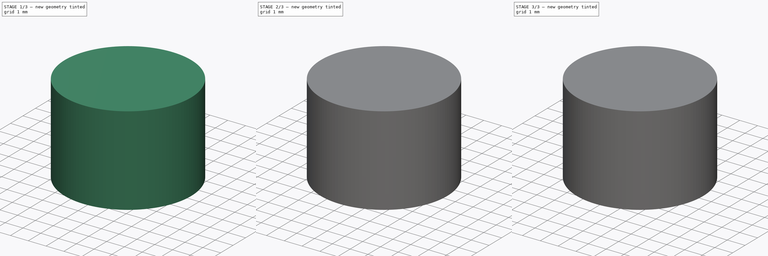
[diagram: build sequence overview — one tinted view per stage of 3, left to right]
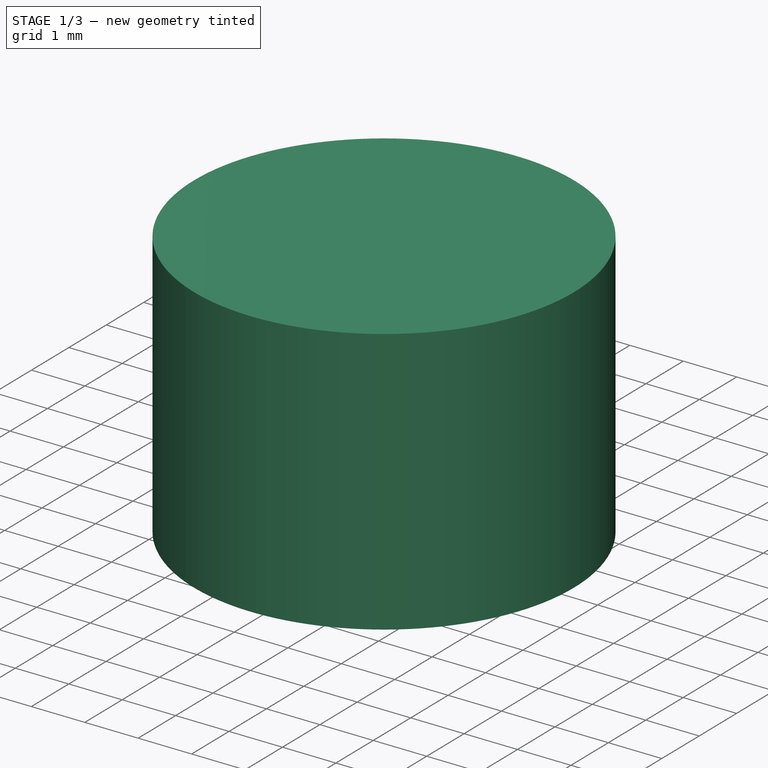
[diagram: stage 1 of 3 — iso view after this stage's code; geometry added in this stage tinted green]
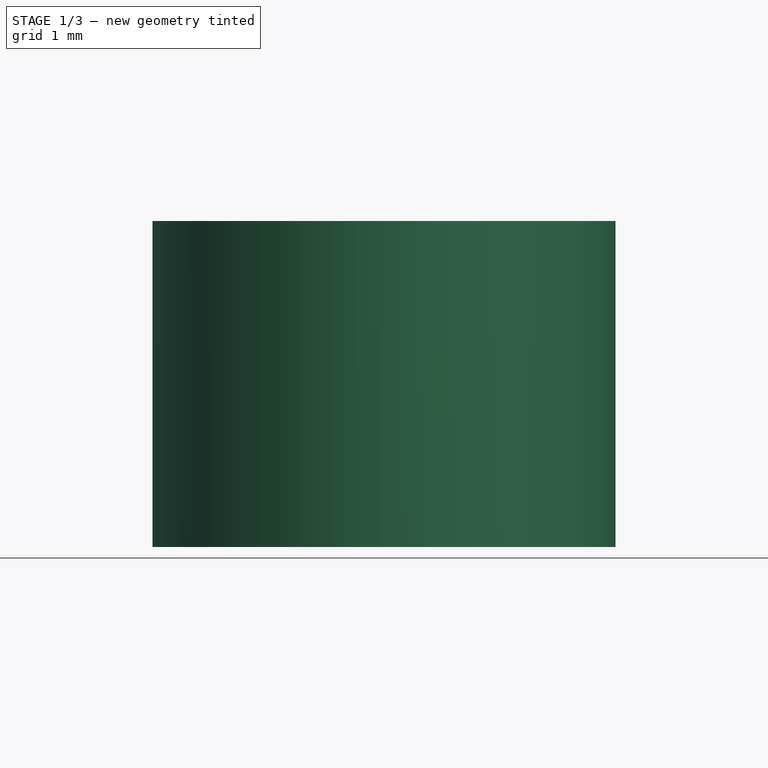
[diagram: stage 1 of 3 — front view after this stage's code; geometry added in this stage tinted green]
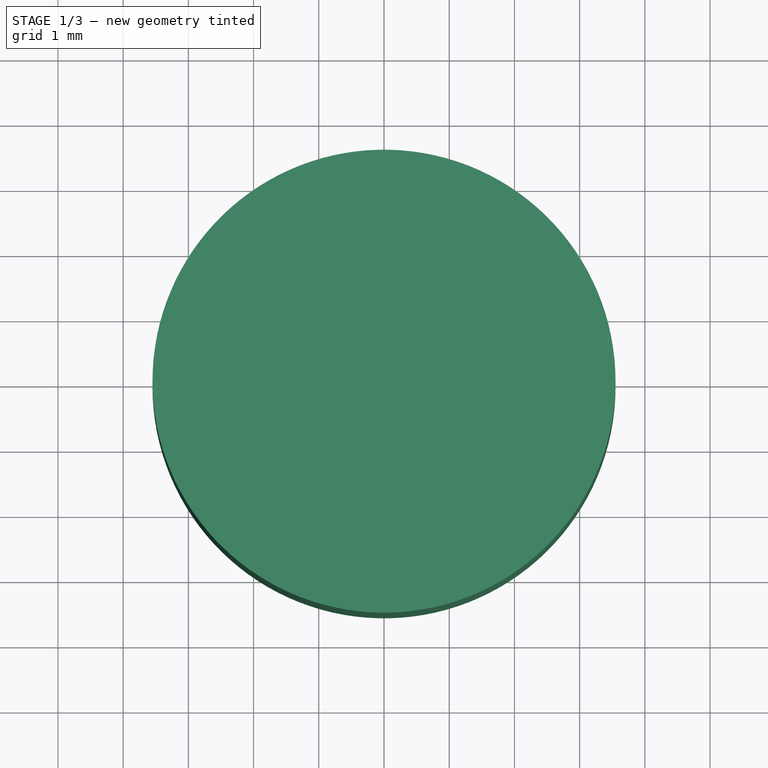
[diagram: stage 1 of 3 — top view after this stage's code; geometry added in this stage tinted green]
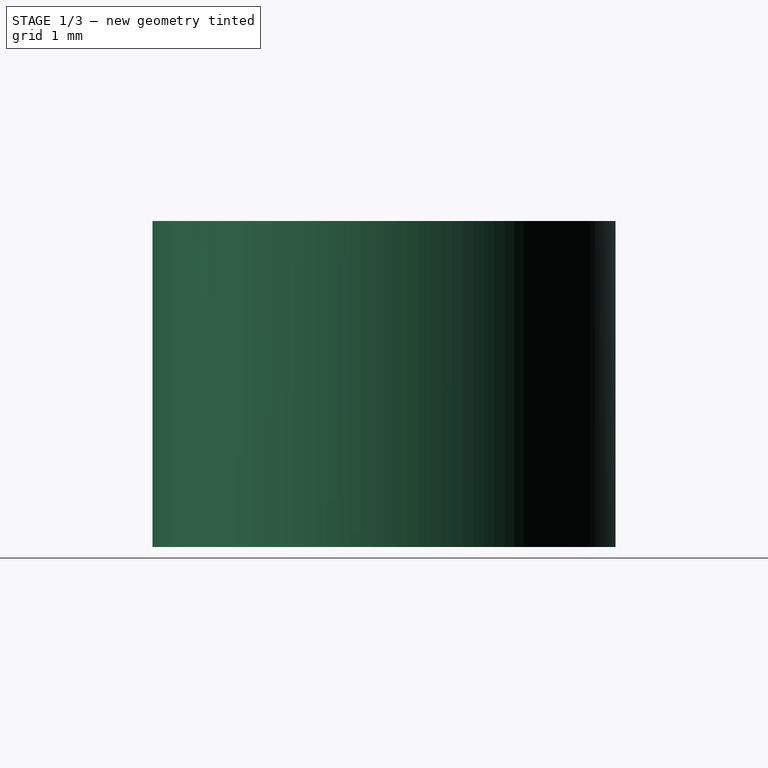
[diagram: stage 1 of 3 — right view after this stage's code; geometry added in this stage tinted green]
FCSTD DOCUMENT  (FreeCAD 0.16R6700 (Git))
Label: BedLevelerBoltHook
License: CreativeCommons Attribution-ShareAlike
LicenseURL: http://creativecommons.org/licenses/by-sa/4.0/
objects: Part::Cylinder×2, Sketcher::SketchObject×1, PartDesign::Pocket×1, PartDesign::Fillet×1, Part::Cut×1
note: 7 computed .brp shape members not serialized (recipe doc carries the construction recipe); baked Part::Feature solids carry a one-line shape summary decoded from their .brp

FEATURE [Part::Cylinder] Cylinder  label="Bolt Base"
  Angle = 360
  Height = 2.54
  Radius = 2.8
FEATURE [Part::Cylinder] Cylinder001  label="BoltHook Base"
  Angle = 360
  Height = 5
  Radius = 3.55
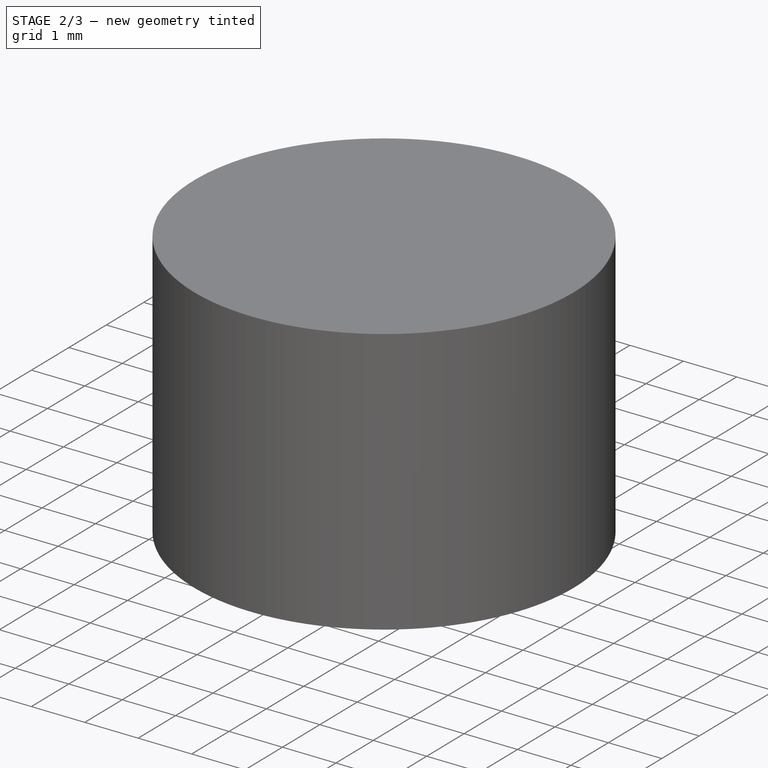
[diagram: stage 2 of 3 — iso view after this stage's code; geometry added in this stage tinted green]
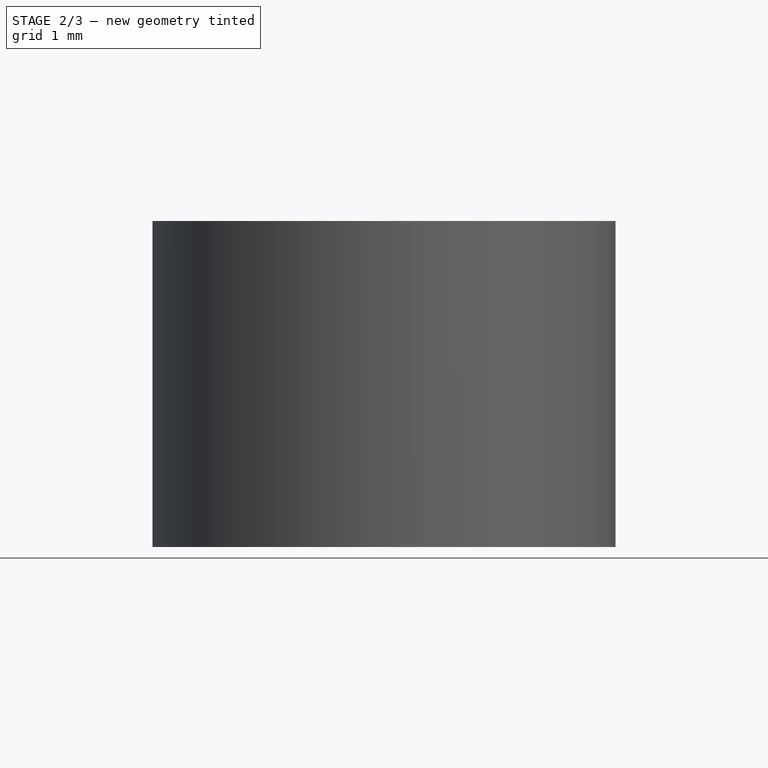
[diagram: stage 2 of 3 — front view after this stage's code; geometry added in this stage tinted green]
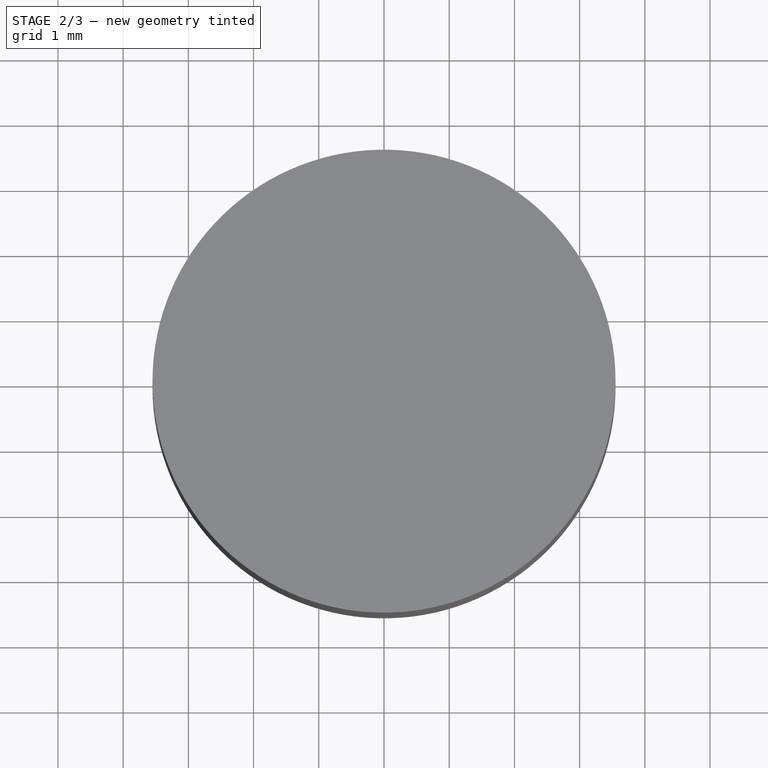
[diagram: stage 2 of 3 — top view after this stage's code; geometry added in this stage tinted green]
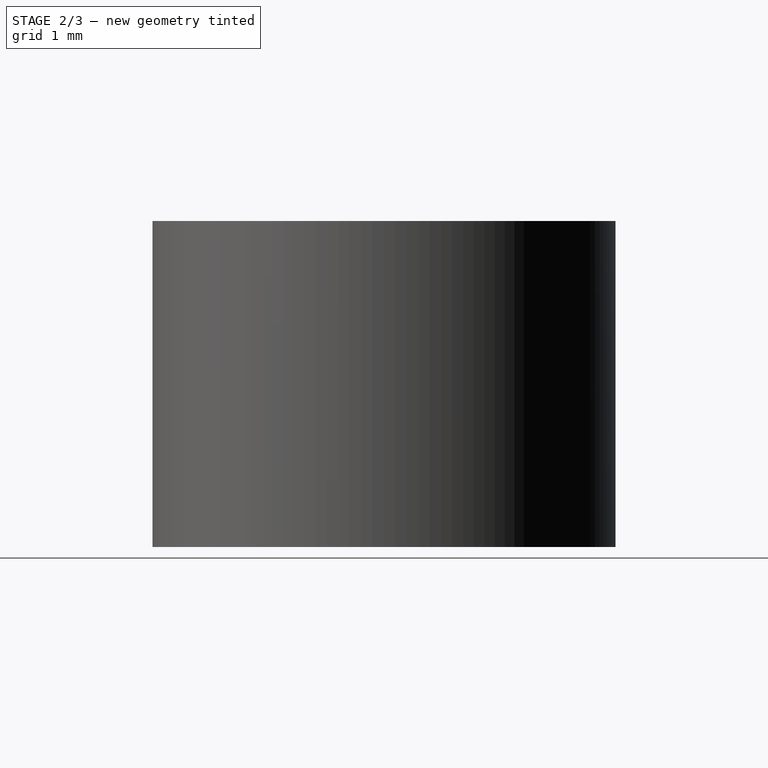
[diagram: stage 2 of 3 — right view after this stage's code; geometry added in this stage tinted green]
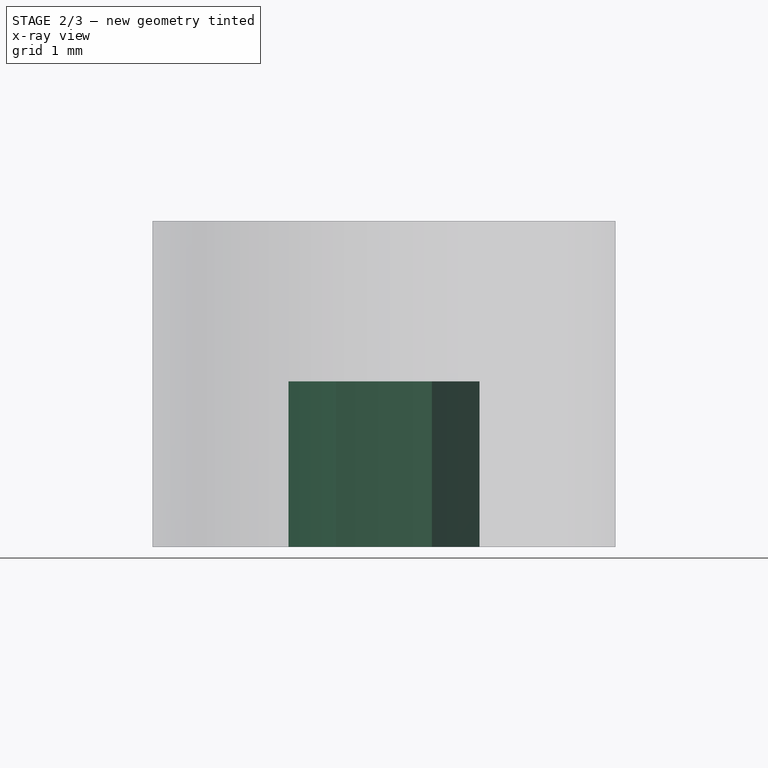
[diagram: stage 2 of 3 — x-ray composite at the front view; earlier geometry ghosted, this stage's added geometry solid]
FEATURE [Sketcher::SketchObject] Sketch
  Placement = pos=(0,0,2.54) rot=(0,0,1;0rad)
  Support = -> Cylinder [Face2]
  sketch-geometry (7):
    g0: LineSegment StartX=-0.733235 StartY=1.27 StartZ=0 EndX=-1.46647 EndY=0 EndZ=0
    g1: LineSegment StartX=-1.46647 StartY=0 StartZ=0 EndX=-0.733235 EndY=-1.27 EndZ=0
    g2: LineSegment StartX=-0.733235 StartY=-1.27 StartZ=0 EndX=0.733235 EndY=-1.27 EndZ=0
    g3: LineSegment StartX=0.733235 StartY=-1.27 StartZ=0 EndX=1.46647 EndY=0 EndZ=0
    g4: LineSegment StartX=1.46647 StartY=0 StartZ=0 EndX=0.733235 EndY=1.27 EndZ=0
    g5: LineSegment StartX=0.733235 StartY=1.27 StartZ=0 EndX=-0.733235 EndY=1.27 EndZ=0
    g6: Circle [constr] CenterX=0 CenterY=0 CenterZ=0 NormalX=0 NormalY=0 NormalZ=1 Radius=1.46647
  constraints (16):
    c: Coincident(g0,g1)
    c: Coincident(g1,g2)
    c: Coincident(g2,g3)
    c: Coincident(g3,g4)
    c: Coincident(g4,g5)
    c: Coincident(g5,g0)
    c: Equal(g0, g1-g5) x5
    c: PointOnObject(g0,g6)
    c: PointOnObject(g1,g6)
    c: PointOnObject(g2,g6)
    c: PointOnObject(g3,g6)
    c: PointOnObject(g4,g6)
    c: PointOnObject(g5,g6)
    c: Coincident(g6,g-1)
    c: PointOnObject(g0,g-1)
    c: DistanceY(g1,g0) = 2.54
FEATURE [PartDesign::Pocket] Pocket
  Length = 5
  Sketch = -> Sketch
  Type = 0
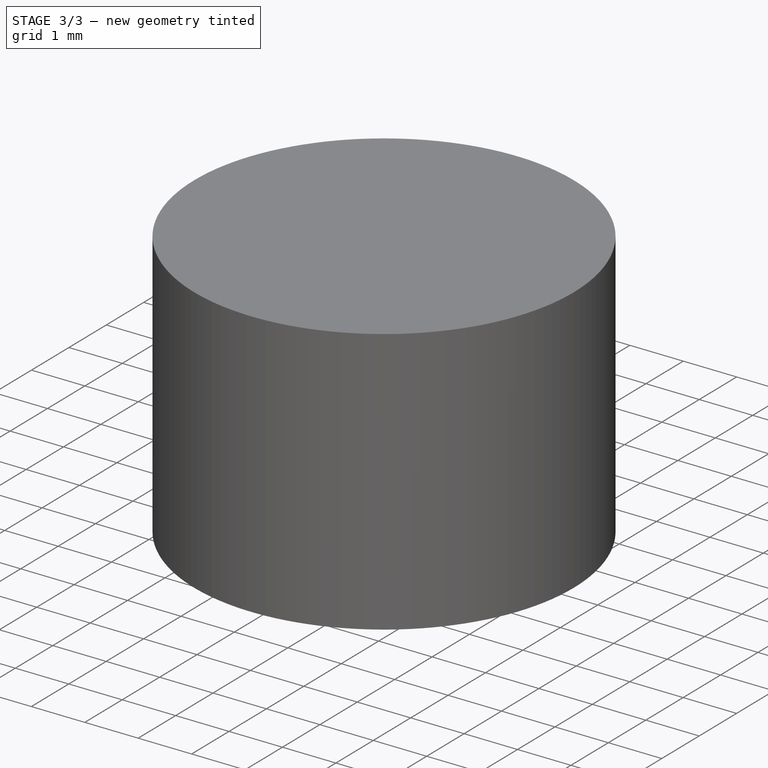
[diagram: stage 3 of 3 — iso view after this stage's code; geometry added in this stage tinted green]
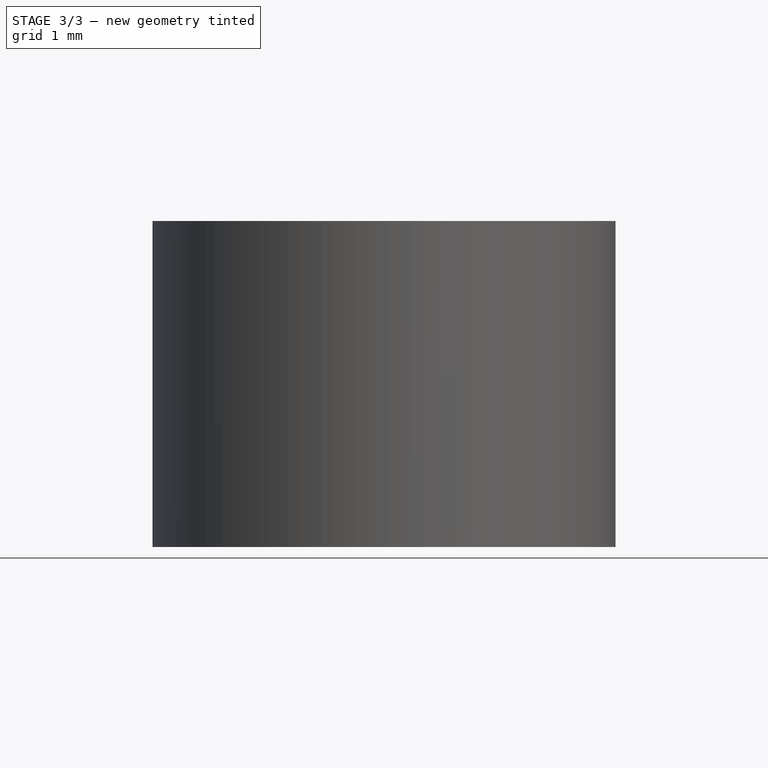
[diagram: stage 3 of 3 — front view after this stage's code; geometry added in this stage tinted green]
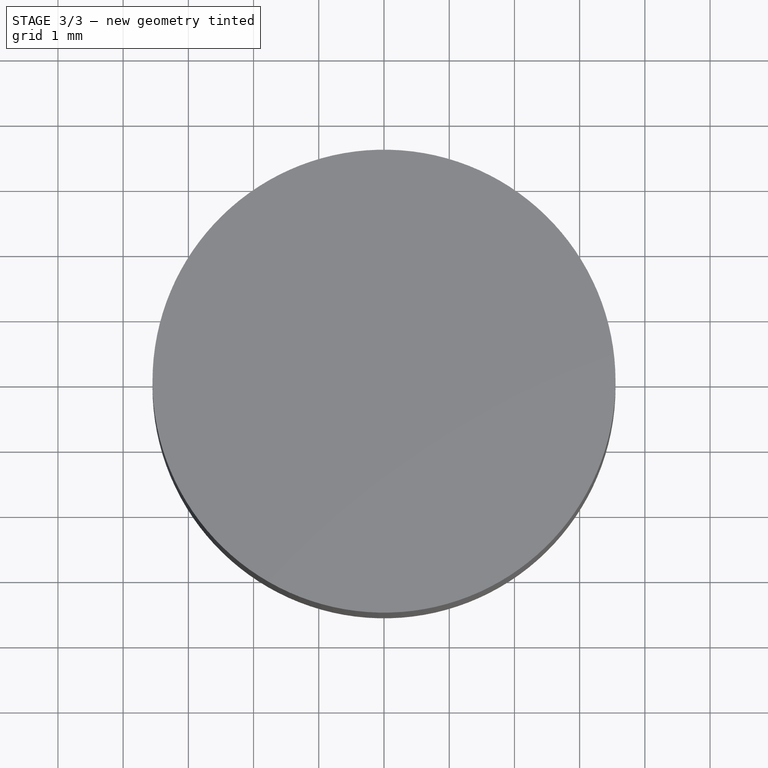
[diagram: stage 3 of 3 — top view after this stage's code; geometry added in this stage tinted green]
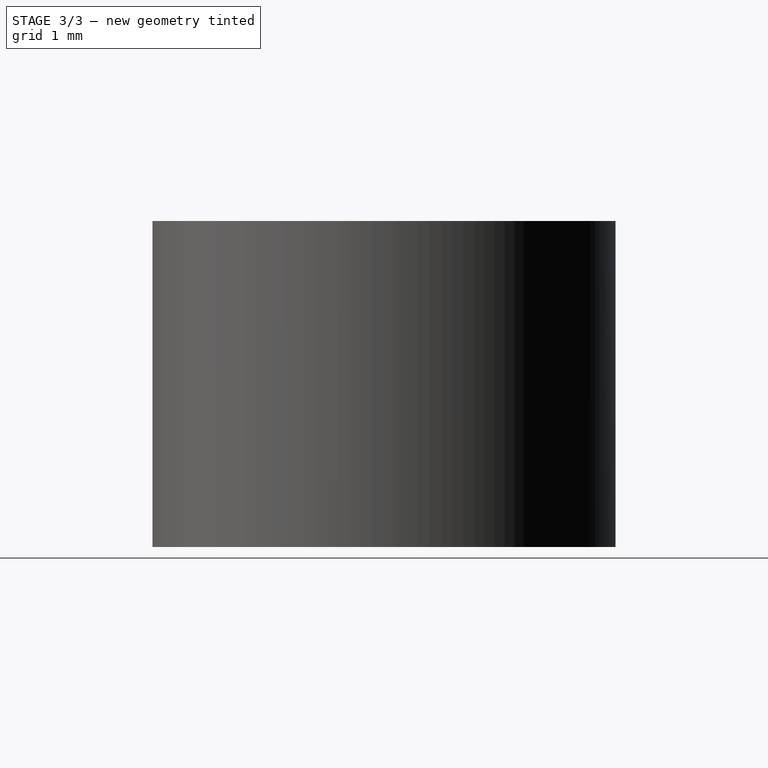
[diagram: stage 3 of 3 — right view after this stage's code; geometry added in this stage tinted green]
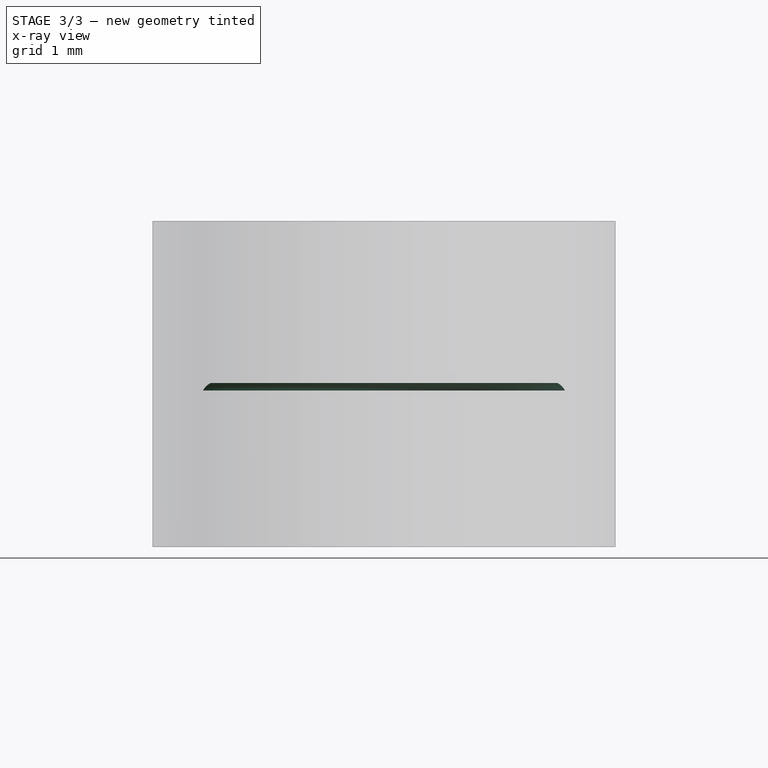
[diagram: stage 3 of 3 — x-ray composite at the front view; earlier geometry ghosted, this stage's added geometry solid]
FEATURE [PartDesign::Fillet] Fillet  label="Bolt"
  Base = -> Pocket [Edge1]
  Radius = 0.25
FEATURE [Part::Cut] Cut  label="Bolt Hook"
  Base = -> Cylinder001
  Tool = -> Fillet
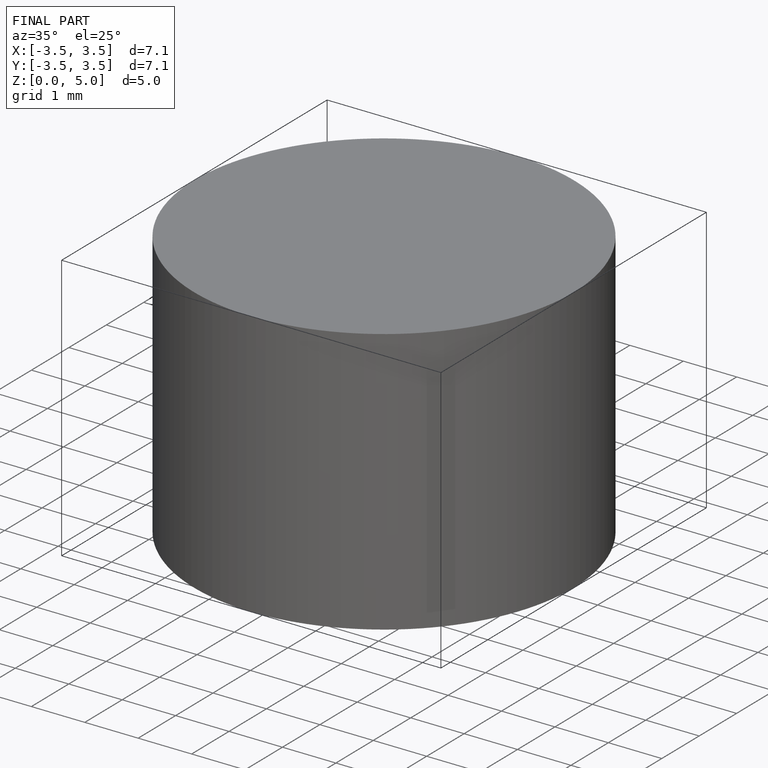
[diagram: finished part — iso view with bounding-box wireframe]
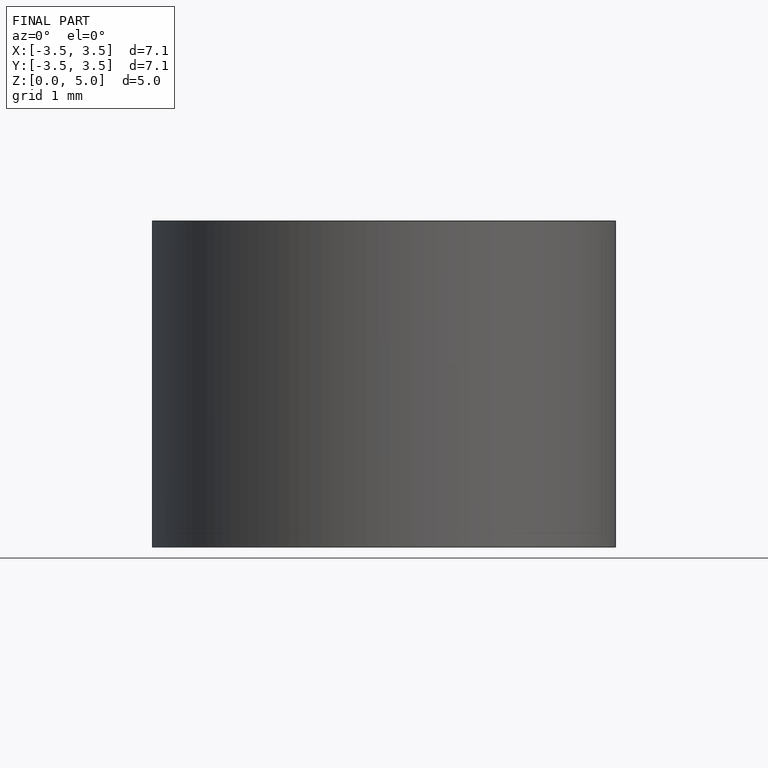
[diagram: finished part — front view with bounding-box wireframe]
